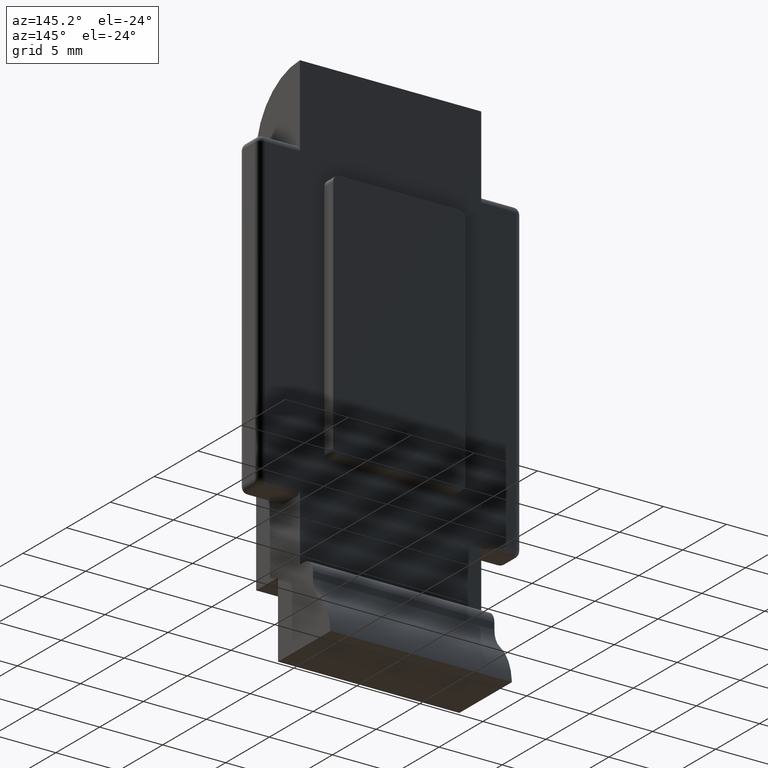
[diagram: clean part render]
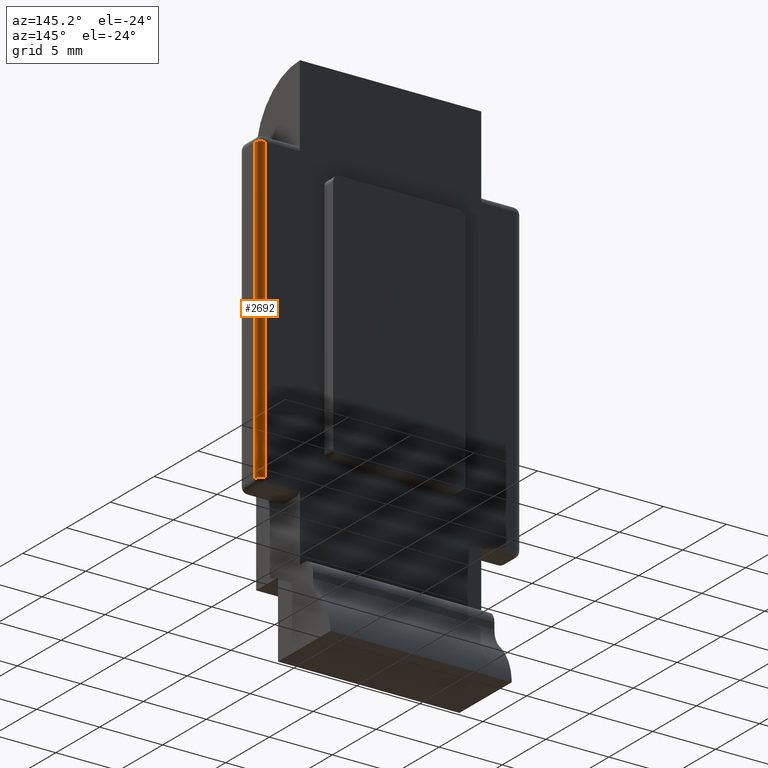
[diagram: same view with one face highlighted and labeled with its STEP entity id]
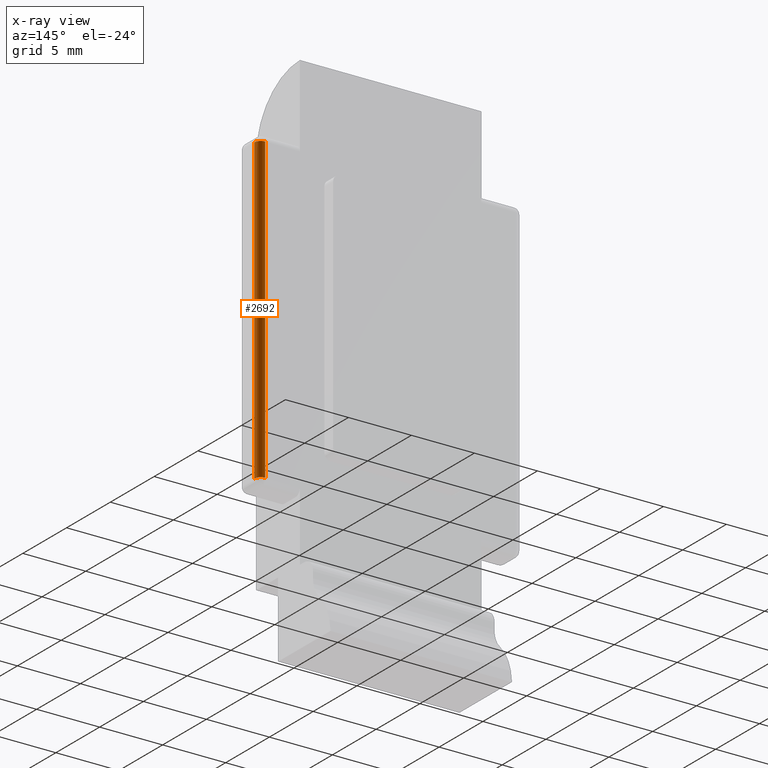
[diagram: x-ray of the same camera — body ghosted, the highlighted face saturated]
A machine part, auxiliary view. The second image highlights one B-rep face of the part: STEP entity #2692.
The next image is the same camera in x-ray: the body ghosted, the highlighted face saturated — about 0% of this face is hidden behind the body in this view.
In plain terms, the highlighted cylindrical surface (edge-blend (fillet) strip) has radius 0.5 mm, axis along (0, -0, 1).
Its self-contained STEP definition (entity closure, byte-faithful):
#257 = CARTESIAN_POINT ( 'NONE',  ( 17.14999999999999900, -6.505213034913026600E-016, 5.499999999999998200 ) ) ;
#286 = LINE ( 'NONE', #6440, #6040 ) ;
#589 = AXIS2_PLACEMENT_3D ( 'NONE', #7656, #747, #1510 ) ;
#747 = DIRECTION ( 'NONE',  ( 0.0000000000000000000, -1.224646799147353000E-016, 1.000000000000000000 ) ) ;
#926 = EDGE_LOOP ( 'NONE', ( #3273, #3729, #2836, #3747 ) ) ;
#1092 = VECTOR ( 'NONE', #4594, 1000.000000000000000 ) ;
#1127 = AXIS2_PLACEMENT_3D ( 'NONE', #4572, #3745, #8335 ) ;
#1510 = DIRECTION ( 'NONE',  ( 0.0000000000000000000, -1.000000000000000000, -1.224646799147353000E-016 ) ) ;
#2692 = ADVANCED_FACE ( 'NONE', ( #6128 ), #9838, .T. ) ;
#2836 = ORIENTED_EDGE ( 'NONE', *, *, #7156, .F. ) ;
#3208 = CIRCLE ( 'NONE', #1127, 0.5000000000000004400 ) ;
#3273 = ORIENTED_EDGE ( 'NONE', *, *, #6444, .T. ) ;
#3387 = EDGE_CURVE ( 'NONE', #7778, #5301, #3490, .T. ) ;
#3490 = LINE ( 'NONE', #8391, #1092 ) ;
#3602 = VERTEX_POINT ( 'NONE', #257 ) ;
#3607 = DIRECTION ( 'NONE',  ( -0.0000000000000000000, 1.224646799147353000E-016, -1.000000000000000000 ) ) ;
#3626 = DIRECTION ( 'NONE',  ( -0.0000000000000000000, -0.0000000000000000000, -1.000000000000000000 ) ) ;
#3729 = ORIENTED_EDGE ( 'NONE', *, *, #3387, .F. ) ;
#3745 = DIRECTION ( 'NONE',  ( -1.734723475976805300E-015, 0.0000000000000000000, -1.000000000000000000 ) ) ;
#3747 = ORIENTED_EDGE ( 'NONE', *, *, #8322, .F. ) ;
#3853 = CARTESIAN_POINT ( 'NONE',  ( 17.64999999999999900, -0.5000000000000035500, 29.50000000000000000 ) ) ;
#4572 = CARTESIAN_POINT ( 'NONE',  ( 17.14999999999999900, -0.5000000000000006700, 5.499999999999998200 ) ) ;
#4594 = DIRECTION ( 'NONE',  ( 0.0000000000000000000, -1.224646799147353000E-016, 1.000000000000000000 ) ) ;
#5301 = VERTEX_POINT ( 'NONE', #3853 ) ;
#6040 = VECTOR ( 'NONE', #3607, 1000.000000000000000 ) ;
#6105 = CARTESIAN_POINT ( 'NONE',  ( 17.14999999999999900, -3.686287386450715100E-015, 29.50000000000000000 ) ) ;
#6128 = FACE_OUTER_BOUND ( 'NONE', #926, .T. ) ;
#6440 = CARTESIAN_POINT ( 'NONE',  ( 17.14999999999999900, -4.336808689942017700E-015, 36.00000000000000000 ) ) ;
#6444 = EDGE_CURVE ( 'NONE', #7195, #5301, #7370, .T. ) ;
#7156 = EDGE_CURVE ( 'NONE', #3602, #7778, #3208, .T. ) ;
#7195 = VERTEX_POINT ( 'NONE', #6105 ) ;
#7370 = CIRCLE ( 'NONE', #8009, 0.5000000000000004400 ) ;
#7437 = DIRECTION ( 'NONE',  ( 1.000000000000000000, 0.0000000000000000000, 0.0000000000000000000 ) ) ;
#7600 = CARTESIAN_POINT ( 'NONE',  ( 17.14999999999999900, -0.5000000000000035500, 29.50000000000000000 ) ) ;
#7656 = CARTESIAN_POINT ( 'NONE',  ( 17.14999999999999900, -0.5000000000000000000, 0.0000000000000000000 ) ) ;
#7778 = VERTEX_POINT ( 'NONE', #9257 ) ;
#8009 = AXIS2_PLACEMENT_3D ( 'NONE', #7600, #3626, #7437 ) ;
#8322 = EDGE_CURVE ( 'NONE', #7195, #3602, #286, .T. ) ;
#8335 = DIRECTION ( 'NONE',  ( -1.000000000000000000, 0.0000000000000000000, 1.734723475976805500E-015 ) ) ;
#8391 = CARTESIAN_POINT ( 'NONE',  ( 17.64999999999999900, -0.5000000000000000000, 0.0000000000000000000 ) ) ;
#9257 = CARTESIAN_POINT ( 'NONE',  ( 17.64999999999999900, -0.5000000000000006700, 5.499999999999998200 ) ) ;
#9838 = CYLINDRICAL_SURFACE ( 'NONE', #589, 0.5000000000000000000 ) ;